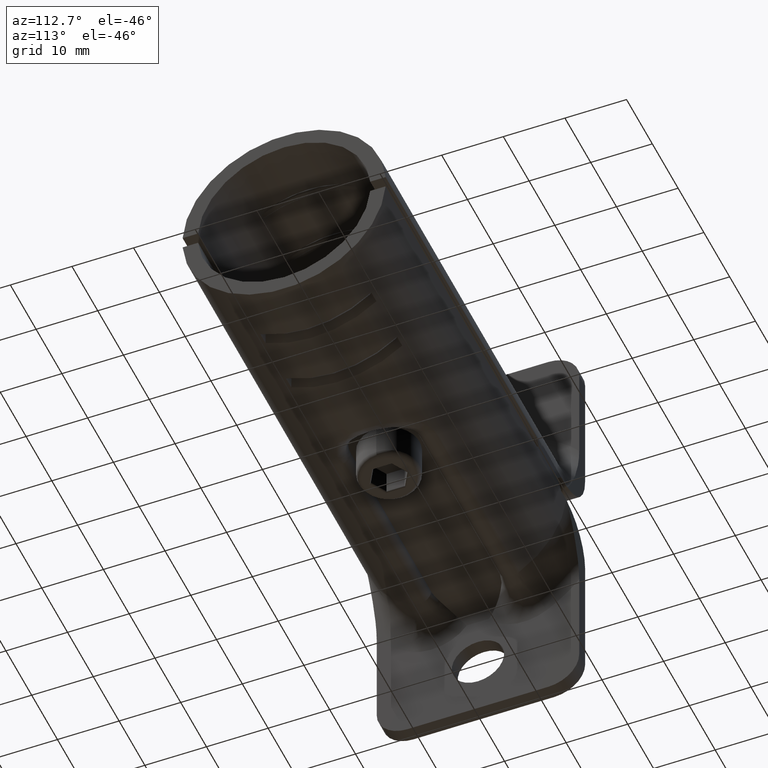
[diagram: clean part render]
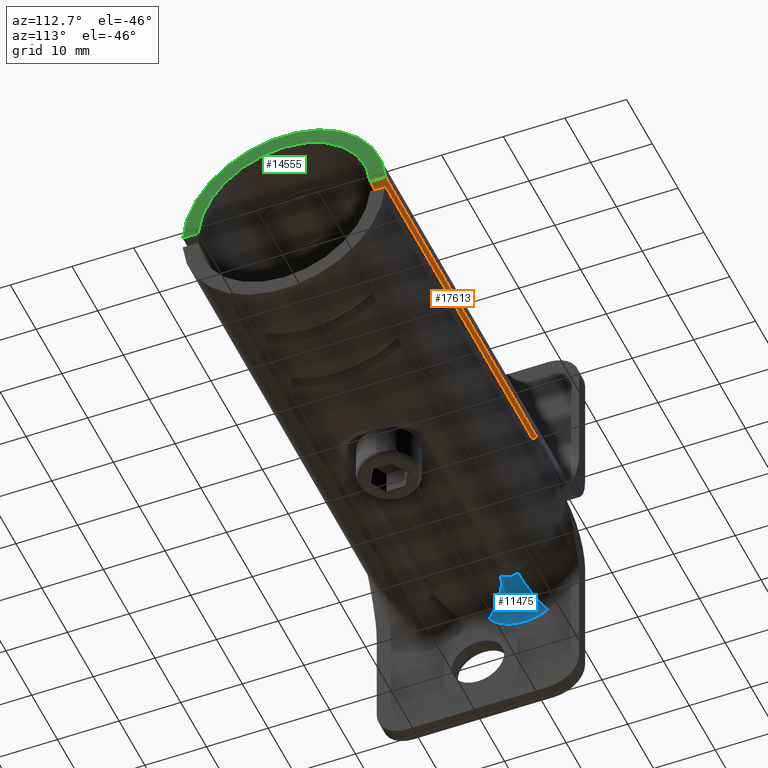
[diagram: same view with three faces highlighted in distinct colors, each labeled with its STEP entity id]
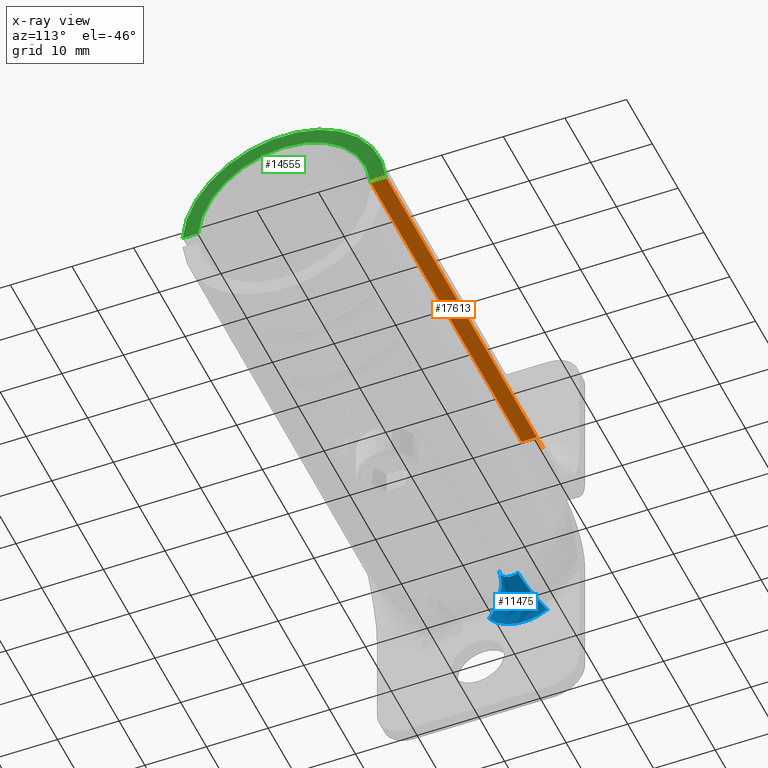
[diagram: x-ray of the same camera — body ghosted, the three highlighted faces saturated]
A machine part, auxiliary view with three faces highlighted in distinct colors.
The next image is the same camera in x-ray (body ghosted, the three faces saturated) — at least one of them is partly hidden behind the body in this view.
Their STEP definitions:

[orange] entity #17613 — the highlighted planar face has unit normal (0, 0, -1).
#48 = CARTESIAN_POINT ( 'NONE',  ( 6.800796950949000497, 13.96424004377000117, 1.000000000000000000 ) ) ;
#235 = DIRECTION ( 'NONE',  ( -1.000000000000000000, 0.000000000000000000, 0.000000000000000000 ) ) ;
#463 = LINE ( 'NONE', #7064, #8794 ) ;
#1045 = LINE ( 'NONE', #16103, #20076 ) ;
#1180 = ORIENTED_EDGE ( 'NONE', *, *, #4799, .F. ) ;
#1816 = LINE ( 'NONE', #15149, #16561 ) ;
#1844 = VECTOR ( 'NONE', #17413, 1000.000000000000000 ) ;
#2804 = EDGE_CURVE ( 'NONE', #5019, #21243, #19867, .T. ) ;
#2867 = EDGE_CURVE ( 'NONE', #3821, #5144, #1816, .T. ) ;
#3014 = CARTESIAN_POINT ( 'NONE',  ( 4.500000000000000000, 16.46966909200000018, 1.000000000000000000 ) ) ;
#3218 = CARTESIAN_POINT ( 'NONE',  ( 65.50000000000000000, 16.46966909200000018, 1.000000000000000000 ) ) ;
#3627 = DIRECTION ( 'NONE',  ( -1.000000000000000000, 0.000000000000000000, 0.000000000000000000 ) ) ;
#3807 = CARTESIAN_POINT ( 'NONE',  ( 65.50000000000000000, 13.96424004377000117, 1.000000000000000000 ) ) ;
#3821 = VERTEX_POINT ( 'NONE', #7699 ) ;
#4201 = ORIENTED_EDGE ( 'NONE', *, *, #5714, .F. ) ;
#4323 = EDGE_CURVE ( 'NONE', #14740, #5019, #463, .T. ) ;
#4799 = EDGE_CURVE ( 'NONE', #3821, #14128, #10742, .T. ) ;
#4905 = CARTESIAN_POINT ( 'NONE',  ( 4.500000000000000000, 16.43167672514999822, 1.000000000000000000 ) ) ;
#5019 = VERTEX_POINT ( 'NONE', #19836 ) ;
#5077 = DIRECTION ( 'NONE',  ( 0.000000000000000000, -1.000000000000000000, 0.000000000000000000 ) ) ;
#5093 = VECTOR ( 'NONE', #12458, 1000.000000000000000 ) ;
#5144 = VERTEX_POINT ( 'NONE', #48 ) ;
#5714 = EDGE_CURVE ( 'NONE', #14128, #21243, #10951, .T. ) ;
#6254 = DIRECTION ( 'NONE',  ( 0.000000000000000000, -1.000000000000000000, 0.000000000000000000 ) ) ;
#6516 = DIRECTION ( 'NONE',  ( 0.000000000000000000, 1.000000000000000000, -2.337781226711000010E-14 ) ) ;
#7064 = CARTESIAN_POINT ( 'NONE',  ( 6.800796950949000497, 16.43167672514999822, 1.000000000000000000 ) ) ;
#7468 = VECTOR ( 'NONE', #6516, 1000.000000000000000 ) ;
#7585 = EDGE_CURVE ( 'NONE', #14740, #5144, #1045, .T. ) ;
#7699 = CARTESIAN_POINT ( 'NONE',  ( 65.50000000000000000, 13.96424004377000117, 1.000000000000000000 ) ) ;
#8794 = VECTOR ( 'NONE', #3627, 1000.000000000000000 ) ;
#9752 = DIRECTION ( 'NONE',  ( 0.000000000000000000, 0.000000000000000000, -1.000000000000000000 ) ) ;
#10742 = LINE ( 'NONE', #3807, #1844 ) ;
#10951 = LINE ( 'NONE', #15973, #5093 ) ;
#12458 = DIRECTION ( 'NONE',  ( -1.000000000000000000, 0.000000000000000000, 0.000000000000000000 ) ) ;
#12577 = ORIENTED_EDGE ( 'NONE', *, *, #2867, .T. ) ;
#13341 = PLANE ( 'NONE',  #19536 ) ;
#13388 = ORIENTED_EDGE ( 'NONE', *, *, #2804, .T. ) ;
#14024 = CARTESIAN_POINT ( 'NONE',  ( 6.800796950949000497, 16.43167672514999822, 1.000000000000000000 ) ) ;
#14128 = VERTEX_POINT ( 'NONE', #3218 ) ;
#14553 = FACE_OUTER_BOUND ( 'NONE', #20372, .T. ) ;
#14740 = VERTEX_POINT ( 'NONE', #14024 ) ;
#15149 = CARTESIAN_POINT ( 'NONE',  ( 65.50000000000000000, 13.96424004377000117, 1.000000000000000000 ) ) ;
#15973 = CARTESIAN_POINT ( 'NONE',  ( 65.50000000000000000, 16.46966909200000018, 1.000000000000000000 ) ) ;
#16103 = CARTESIAN_POINT ( 'NONE',  ( 6.800796950949000497, 16.43167672514999822, 1.000000000000000000 ) ) ;
#16561 = VECTOR ( 'NONE', #235, 1000.000000000000000 ) ;
#17413 = DIRECTION ( 'NONE',  ( 0.000000000000000000, 1.000000000000000000, 0.000000000000000000 ) ) ;
#17613 = ADVANCED_FACE ( 'NONE', ( #14553 ), #13341, .T. ) ;
#19536 = AXIS2_PLACEMENT_3D ( 'NONE', #20051, #9752, #5077 ) ;
#19836 = CARTESIAN_POINT ( 'NONE',  ( 4.500000000000000000, 16.43167672514999822, 1.000000000000000000 ) ) ;
#19867 = LINE ( 'NONE', #4905, #7468 ) ;
#19871 = ORIENTED_EDGE ( 'NONE', *, *, #4323, .T. ) ;
#20051 = CARTESIAN_POINT ( 'NONE',  ( 65.50000000000000000, 13.96424004377000117, 1.000000000000000000 ) ) ;
#20076 = VECTOR ( 'NONE', #6254, 1000.000000000000000 ) ;
#20372 = EDGE_LOOP ( 'NONE', ( #13388, #4201, #1180, #12577, #20747, #19871 ) ) ;
#20747 = ORIENTED_EDGE ( 'NONE', *, *, #7585, .F. ) ;
#21243 = VERTEX_POINT ( 'NONE', #3014 ) ;

[blue] entity #11475 — the highlighted face is a freeform B-spline surface patch.
#3 = CARTESIAN_POINT ( 'NONE',  ( -9.281798803382201868, 3.066395360007149407, -14.71481328484357043 ) ) ;
#219 = CARTESIAN_POINT ( 'NONE',  ( -8.035644806414220298, 4.332376284738724159, -13.25272164190010571 ) ) ;
#280 = CARTESIAN_POINT ( 'NONE',  ( -4.542946598181998752, 8.539464030323003385, -14.13024464838000682 ) ) ;
#325 = CARTESIAN_POINT ( 'NONE',  ( -9.066371282774213114, 3.360758559564558823, -14.33954832447911087 ) ) ;
#387 = CARTESIAN_POINT ( 'NONE',  ( -9.794169770464996816, 9.619562344839994950, -15.91165852311999984 ) ) ;
#433 = CARTESIAN_POINT ( 'NONE',  ( -8.397012807487293173, 4.047229719760503386, -13.54324960589868354 ) ) ;
#485 = CARTESIAN_POINT ( 'NONE',  ( -9.794198765653993277, 4.610157862802002349, -15.33680182081998744 ) ) ;
#590 = CARTESIAN_POINT ( 'NONE',  ( -4.700000000000077449, 7.935231629156128896, -14.38054410035235975 ) ) ;
#593 = FACE_OUTER_BOUND ( 'NONE', #5914, .T. ) ;
#696 = CARTESIAN_POINT ( 'NONE',  ( -7.618433025734001163, 6.447837503009996141, -14.02003380534999977 ) ) ;
#934 = CARTESIAN_POINT ( 'NONE',  ( -9.700000000000001066, 10.21687690056845454, -18.86673847111377000 ) ) ;
#1130 = CARTESIAN_POINT ( 'NONE',  ( -9.697531716020991510, 6.204015579213998599, -19.50270139112998180 ) ) ;
#1357 = CARTESIAN_POINT ( 'NONE',  ( -9.700000000000002842, 3.367930259876878996, -18.07035795059152861 ) ) ;
#1503 = CARTESIAN_POINT ( 'NONE',  ( -9.627862815410070496, 2.323356863247928228, -15.74375850765585128 ) ) ;
#1560 = CARTESIAN_POINT ( 'NONE',  ( -9.700000000000002842, 3.548749491729784822, -18.19815503623140529 ) ) ;
#1705 = CARTESIAN_POINT ( 'NONE',  ( -7.203289673997687714, 4.855826943283894970, -12.79046242283997259 ) ) ;
#1806 = CARTESIAN_POINT ( 'NONE',  ( -8.745556487532709866, 3.721402240502910352, -13.90614000059883182 ) ) ;
#1874 = CARTESIAN_POINT ( 'NONE',  ( -7.618416244714002694, 8.489253978103993958, -14.04743285016999366 ) ) ;
#1919 = CARTESIAN_POINT ( 'NONE',  ( -7.072642304730296203, 4.922494805677656515, -12.74042991334454733 ) ) ;
#1978 = CARTESIAN_POINT ( 'NONE',  ( -9.794213374750999179, 9.154640253075994494, -16.17392726407999959 ) ) ;
#2022 = B_SPLINE_CURVE_WITH_KNOTS ( 'NONE', 3,
 ( #14425, #17505, #2555, #21258, #6247, #934, #19599, #19256, #15977, #4432, #9413, #5160, #4750, #11491, #11591, #18280, #1560, #1357, #19812, #14757, #16528, #20145, #11796 ),
 .UNSPECIFIED., .F., .F.,
 ( 4, 1, 2, 2, 2, 2, 2, 2, 2, 2, 2, 4 ),
 ( 0.000000000000000000, 0.06249999999999877875, 0.09374999999999861222, 0.1249999999999984457, 0.2499999999999986677, 0.3749999999999988898, 0.4999999999999991118, 0.6249999999999993339, 0.7499999999999995559, 0.8124999999999996669, 0.8749999999999997780, 1.000000000000000000 ),
 .UNSPECIFIED. ) ;
#2028 = CARTESIAN_POINT ( 'NONE',  ( -7.783963014685265414, 4.510261296459660230, -13.08326652617640029 ) ) ;
#2094 = CARTESIAN_POINT ( 'NONE',  ( -7.618433599412004931, 7.534843686099995885, -14.33339640328999209 ) ) ;
#2143 = ORIENTED_EDGE ( 'NONE', *, *, #8377, .F. ) ;
#2157 =( BOUNDED_SURFACE ( )  B_SPLINE_SURFACE ( 3, 3, ( 
 ( #8520, #280, #2198, #2306, #20676, #5578, #8837, #3755, #13644, #3963, #16841, #20253, #10369, #12116 ),
 ( #17043, #1874, #20358, #8621, #2094, #3657, #15629, #696, #6882, #8728, #7306, #11910, #13953, #18596 ),
 ( #10266, #387, #1978, #6990, #15407, #18807, #3859, #15519, #485, #7093, #17713, #4075, #7855, #20902 ),
 ( #14402, #13164, #10806, #21517, #6514, #1130, #21128, #12547, #6122, #16182, #17601, #19120, #2649, #9395 ) ),
 .UNSPECIFIED., .F., .F., .T. ) 
 B_SPLINE_SURFACE_WITH_KNOTS ( ( 4, 4 ),
 ( 4, 1, 1, 1, 1, 1, 1, 1, 1, 1, 1, 4 ),
 ( 0.000000000000000000, 1.000000000000000000 ),
 ( 0.003877849984449000236, 0.09026218317414000381, 0.1814525561137999843, 0.2724405185035000398, 0.3633954578663999846, 0.4544136458971999581, 0.5454107882611000102, 0.6364590013615999409, 0.7274686368870999509, 0.8185163959632999475, 0.9097372343197999145, 0.9951218991283999893 ),
 .UNSPECIFIED. ) 
 GEOMETRIC_REPRESENTATION_ITEM ( )  RATIONAL_B_SPLINE_SURFACE ( (
 ( 1.187264090398000072, 1.187264090398000072, 1.187264090398000072, 1.187264090398000072, 1.187264090398000072, 1.187264090398000072, 1.187264090398000072, 1.187264090398000072, 1.187264090398000072, 1.187264090398000072, 1.187264090398000072, 1.187264090398000072, 1.187264090398000072, 1.187264090398000072),
 ( 0.9375786365339000561, 0.9375786365339000561, 0.9375786365339000561, 0.9375786365339000561, 0.9375786365339000561, 0.9375786365339000561, 0.9375786365339000561, 0.9375786365339000561, 0.9375786365339000561, 0.9375786365339000561, 0.9375786365339000561, 0.9375786365339000561, 0.9375786365339000561, 0.9375786365339000561),
 ( 0.9375786365339000561, 0.9375786365339000561, 0.9375786365339000561, 0.9375786365339000561, 0.9375786365339000561, 0.9375786365339000561, 0.9375786365339000561, 0.9375786365339000561, 0.9375786365339000561, 0.9375786365339000561, 0.9375786365339000561, 0.9375786365339000561, 0.9375786365339000561, 0.9375786365339000561),
 ( 1.187264090398000072, 1.187264090398000072, 1.187264090398000072, 1.187264090398000072, 1.187264090398000072, 1.187264090398000072, 1.187264090398000072, 1.187264090398000072, 1.187264090398000072, 1.187264090398000072, 1.187264090398000072, 1.187264090398000072, 1.187264090398000072, 1.187264090398000072) ) ) 
 REPRESENTATION_ITEM ( '' )  SURFACE ( )  );
#2198 = CARTESIAN_POINT ( 'NONE',  ( -4.542945253860999344, 8.310267083754006023, -14.25957845621001496 ) ) ;
#2306 = CARTESIAN_POINT ( 'NONE',  ( -4.542945817617003001, 7.935770744400004517, -14.38296861018998385 ) ) ;
#2555 = CARTESIAN_POINT ( 'NONE',  ( -9.699999999999999289, 10.81117353562882144, -18.58862903598904737 ) ) ;
#2645 = CARTESIAN_POINT ( 'NONE',  ( -4.699999999999799449, 6.395866414916735465, -14.09933296200141406 ) ) ;
#2649 = CARTESIAN_POINT ( 'NONE',  ( -9.697506553185004208, 0.3433829022722000857, -12.89105234279001877 ) ) ;
#3003 = B_SPLINE_CURVE_WITH_KNOTS ( 'NONE', 3,
 ( #13625, #20335, #8495, #11887, #16715, #6755, #7070, #10133, #20446, #8390, #5453, #6861, #12090, #17131 ),
 .UNSPECIFIED., .F., .F.,
 ( 4, 2, 2, 2, 2, 2, 4 ),
 ( 0.000000000000000000, 0.2500000000000001665, 0.3750000000000003886, 0.5000000000000005551, 0.6250000000000007772, 0.7500000000000009992, 1.000000000000000000 ),
 .UNSPECIFIED. ) ;
#3061 = B_SPLINE_CURVE_WITH_KNOTS ( 'NONE', 3,
 ( #6930, #3490, #8463, #20088 ),
 .UNSPECIFIED., .F., .F.,
 ( 4, 4 ),
 ( 0.000000000000000000, 1.000000000000000000 ),
 .UNSPECIFIED. ) ;
#3163 = CARTESIAN_POINT ( 'NONE',  ( -9.630616991641975488, 2.313400248356630051, -15.75819879372764021 ) ) ;
#3379 = CARTESIAN_POINT ( 'NONE',  ( -8.053483446909444510, 4.319228695050499667, -13.26557682015593009 ) ) ;
#3485 = CARTESIAN_POINT ( 'NONE',  ( -8.903744558440909174, 3.554712267359029010, -14.10164942811593214 ) ) ;
#3490 = CARTESIAN_POINT ( 'NONE',  ( -5.370101355884566274, 5.466641228875332992, -12.50000000000000000 ) ) ;
#3589 = CARTESIAN_POINT ( 'NONE',  ( -9.191320285214191088, 3.196421181646649234, -14.54686758384840672 ) ) ;
#3657 = CARTESIAN_POINT ( 'NONE',  ( -7.618432839774005316, 7.154233336160002565, -14.30250894842999543 ) ) ;
#3696 = CARTESIAN_POINT ( 'NONE',  ( -7.361815198159476381, 4.767578803922137176, -12.86153492058875081 ) ) ;
#3755 = CARTESIAN_POINT ( 'NONE',  ( -4.542945695117998284, 6.394504999422997216, -14.10141025351999922 ) ) ;
#3859 = CARTESIAN_POINT ( 'NONE',  ( -9.794199071575000914, 5.973723443957003276, -16.23040574016997439 ) ) ;
#3861 = CARTESIAN_POINT ( 'NONE',  ( -4.700000000000000178, 8.580185966971001221, -14.09724929075000155 ) ) ;
#3963 = CARTESIAN_POINT ( 'NONE',  ( -4.542945667408997856, 5.825456739022998320, -13.53878351271001890 ) ) ;
#4075 = CARTESIAN_POINT ( 'NONE',  ( -9.794211905177997224, 3.469858407184996718, -13.21362819193999094 ) ) ;
#4280 = ORIENTED_EDGE ( 'NONE', *, *, #11338, .F. ) ;
#4296 = CARTESIAN_POINT ( 'NONE',  ( -4.700000000000043698, 7.536645658987506380, -14.42819113276944165 ) ) ;
#4432 = CARTESIAN_POINT ( 'NONE',  ( -9.700000000000001066, 7.960217801047376085, -19.41421378288857724 ) ) ;
#4690 = CARTESIAN_POINT ( 'NONE',  ( -9.648739228072731322, 2.243417894326656725, -15.86007288354360156 ) ) ;
#4750 = CARTESIAN_POINT ( 'NONE',  ( -9.700000000000004619, 5.757556024538891926, -19.20973188487887739 ) ) ;
#5104 = CARTESIAN_POINT ( 'NONE',  ( -6.272681183581153341, 5.257052503382949382, -12.53027476114837313 ) ) ;
#5160 = CARTESIAN_POINT ( 'NONE',  ( -9.700000000000001066, 6.629955619302449144, -19.37521783417113852 ) ) ;
#5203 = CARTESIAN_POINT ( 'NONE',  ( -7.431300095950878593, 4.728070803366362540, -12.89385771397441083 ) ) ;
#5309 = CARTESIAN_POINT ( 'NONE',  ( -7.613920217335012453, 4.618585133361037265, -12.98700245216325122 ) ) ;
#5312 = EDGE_CURVE ( 'NONE', #9595, #9091, #3003, .T. ) ;
#5453 = CARTESIAN_POINT ( 'NONE',  ( -9.227109162012363086, 10.12219170797770396, -16.49619017944274191 ) ) ;
#5578 = CARTESIAN_POINT ( 'NONE',  ( -4.542945705125998046, 7.136744237561002180, -14.39822035531998523 ) ) ;
#5837 = EDGE_CURVE ( 'NONE', #9595, #16827, #10240, .T. ) ;
#5901 = CARTESIAN_POINT ( 'NONE',  ( -4.700000000000254197, 8.285886721115653941, -14.26500953300897301 ) ) ;
#5914 = EDGE_LOOP ( 'NONE', ( #6076, #2143, #4280, #18787, #9826 ) ) ;
#5929 = CARTESIAN_POINT ( 'NONE',  ( -9.699999487522001473, 11.28384784320999934, -18.30322968466000333 ) ) ;
#6076 = ORIENTED_EDGE ( 'NONE', *, *, #8770, .F. ) ;
#6122 = CARTESIAN_POINT ( 'NONE',  ( -9.697531743576005780, 2.433245775826002877, -17.53822228722999199 ) ) ;
#6191 = CARTESIAN_POINT ( 'NONE',  ( -9.638488927281667173, 2.284052874047266091, -15.80083769008507133 ) ) ;
#6247 = CARTESIAN_POINT ( 'NONE',  ( -9.699999999999999289, 10.31600043949544698, -18.82410110193183428 ) ) ;
#6504 = CARTESIAN_POINT ( 'NONE',  ( -9.587609382996921781, 2.457765642307669918, -15.54984137880464523 ) ) ;
#6514 = CARTESIAN_POINT ( 'NONE',  ( -9.697533016826998420, 7.635313160327998006, -19.61870158233001504 ) ) ;
#6716 = CARTESIAN_POINT ( 'NONE',  ( -6.569196241656323210, 5.143016113673136047, -12.59556885781216096 ) ) ;
#6755 = CARTESIAN_POINT ( 'NONE',  ( -7.721895739477815823, 9.121860595264102756, -14.94010557674381801 ) ) ;
#6821 = CARTESIAN_POINT ( 'NONE',  ( -7.557446917138671338, 4.653354329496190545, -12.95685985807977403 ) ) ;
#6861 = CARTESIAN_POINT ( 'NONE',  ( -9.592606425002060178, 10.62143181997744534, -17.27279078402958845 ) ) ;
#6882 = CARTESIAN_POINT ( 'NONE',  ( -7.618432855865998832, 6.150231257511994620, -13.77938978237000001 ) ) ;
#6924 = CARTESIAN_POINT ( 'NONE',  ( -5.983570445661805515, 5.341309576150226945, -12.50000000000000000 ) ) ;
#6930 = CARTESIAN_POINT ( 'NONE',  ( -5.700000000000000178, 5.399242980147999305, -12.50000000000000000 ) ) ;
#6990 = CARTESIAN_POINT ( 'NONE',  ( -9.794195088807002847, 8.390084105887000376, -16.42610730219998416 ) ) ;
#7029 = CARTESIAN_POINT ( 'NONE',  ( -5.700000000000000178, 5.399242980147999305, -12.50000000000000000 ) ) ;
#7070 = CARTESIAN_POINT ( 'NONE',  ( -7.991456044898798794, 9.240007118119276441, -15.12389132349037624 ) ) ;
#7093 = CARTESIAN_POINT ( 'NONE',  ( -9.794199960928999360, 4.087826919264997194, -14.70548157482999940 ) ) ;
#7134 = CARTESIAN_POINT ( 'NONE',  ( -9.162419166848591701, 3.235993738656262941, -14.49639542847765661 ) ) ;
#7199 = CARTESIAN_POINT ( 'NONE',  ( -4.700000000000389200, 6.083565167042920940, -13.84680642122376604 ) ) ;
#7303 = CARTESIAN_POINT ( 'NONE',  ( -4.700000000000404299, 7.137190680690478573, -14.39577713620386845 ) ) ;
#7306 = CARTESIAN_POINT ( 'NONE',  ( -7.618430968982999651, 5.725255388970996506, -13.14634811087999644 ) ) ;
#7605 = VERTEX_POINT ( 'NONE', #12914 ) ;
#7620 = CARTESIAN_POINT ( 'NONE',  ( -4.700000000000528644, 5.637618321303437874, -13.18253434504948096 ) ) ;
#7855 = CARTESIAN_POINT ( 'NONE',  ( -9.794173088005996064, 3.418018416461997333, -12.68545912670999876 ) ) ;
#8377 = EDGE_CURVE ( 'NONE', #7605, #17394, #11390, .T. ) ;
#8390 = CARTESIAN_POINT ( 'NONE',  ( -9.071858350041290819, 9.958891383499024030, -16.24216571865109771 ) ) ;
#8457 = CARTESIAN_POINT ( 'NONE',  ( -8.623750942580668877, 3.840889525469025401, -13.77015991249561111 ) ) ;
#8463 = CARTESIAN_POINT ( 'NONE',  ( -5.036768022551233237, 5.500340353239000279, -12.50000000000000000 ) ) ;
#8495 = CARTESIAN_POINT ( 'NONE',  ( -5.924988577267217060, 8.638154633101160940, -14.18765892516026383 ) ) ;
#8520 = CARTESIAN_POINT ( 'NONE',  ( -4.542945836964999096, 8.642510683859997656, -14.05851071665998120 ) ) ;
#8562 = CARTESIAN_POINT ( 'NONE',  ( -6.878652241858118188, 5.013347779252612213, -12.67698974287731239 ) ) ;
#8621 = CARTESIAN_POINT ( 'NONE',  ( -7.618430749423997561, 7.914651280276000733, -14.28799012624999776 ) ) ;
#8667 = CARTESIAN_POINT ( 'NONE',  ( -8.686820597058298787, 3.779847477952523072, -13.83921370177914945 ) ) ;
#8728 = CARTESIAN_POINT ( 'NONE',  ( -7.618433540631005307, 5.906233167254998584, -13.48454773636000148 ) ) ;
#8770 = EDGE_CURVE ( 'NONE', #17394, #16827, #3061, .T. ) ;
#8771 = CARTESIAN_POINT ( 'NONE',  ( -7.898171017892764212, 4.432690407197528160, -13.15523274875062754 ) ) ;
#8837 = CARTESIAN_POINT ( 'NONE',  ( -4.542945694828003589, 6.750878533978999840, -14.28704607763998702 ) ) ;
#9091 = VERTEX_POINT ( 'NONE', #5929 ) ;
#9279 = CARTESIAN_POINT ( 'NONE',  ( -4.699999999999775468, 5.827518713869994649, -13.53739903942878264 ) ) ;
#9391 = CARTESIAN_POINT ( 'NONE',  ( -4.700000000000000178, 5.500340353239000279, -12.49999990807999950 ) ) ;
#9395 = CARTESIAN_POINT ( 'NONE',  ( -9.697526521338991401, 0.3414636969384000631, -12.44437275882000016 ) ) ;
#9413 = CARTESIAN_POINT ( 'NONE',  ( -9.700000000000004619, 7.070770853139284995, -19.41616787315483705 ) ) ;
#9595 = VERTEX_POINT ( 'NONE', #3861 ) ;
#9826 = ORIENTED_EDGE ( 'NONE', *, *, #5837, .T. ) ;
#9886 = CARTESIAN_POINT ( 'NONE',  ( -9.442875683509694085, 2.789375520684449050, -15.08643442565414361 ) ) ;
#9987 = CARTESIAN_POINT ( 'NONE',  ( -9.063074445448084049, 3.364882563355239942, -14.33441689508726213 ) ) ;
#10088 = CARTESIAN_POINT ( 'NONE',  ( -8.785045295861944936, 3.680890747925325890, -13.95313689260117407 ) ) ;
#10133 = CARTESIAN_POINT ( 'NONE',  ( -8.479611486858139813, 9.503978975601201640, -15.53451847370386929 ) ) ;
#10199 = CARTESIAN_POINT ( 'NONE',  ( -8.095231321069343622, 4.288125332631408604, -13.29618801488487989 ) ) ;
#10240 =( BOUNDED_CURVE ( )  B_SPLINE_CURVE ( 3, ( #14168, #15514, #5901, #590, #4296, #7303, #10924, #2645, #7199, #9279, #7620, #14285, #21231, #9391 ),
 .UNSPECIFIED., .F., .F. ) 
 B_SPLINE_CURVE_WITH_KNOTS ( ( 4, 1, 1, 1, 1, 1, 1, 1, 1, 1, 1, 4 ),
 ( 0.000000000000000000, 0.07274792047830805353, 0.1680651267422762496, 0.2631707623379974104, 0.3582418804451341088, 0.4533791095476511490, 0.5484943405586132359, 0.6436629535196387586, 0.7387912430720096069, 0.8339593814618008194, 0.9293084318593901605, 1.000000000000000000 ),
 .UNSPECIFIED. ) 
 CURVE ( )  GEOMETRIC_REPRESENTATION_ITEM ( )  RATIONAL_B_SPLINE_CURVE ( ( 1.171574108519800816, 1.171574108519800816, 1.171574108519800816, 1.171574108519800816, 1.171574108519800816, 1.171574108519800816, 1.171574108519800816, 1.171574108519800816, 1.171574108519800816, 1.171574108519800816, 1.171574108519800816, 1.171574108519800816, 1.171574108519800816, 1.171574108519800816 ) ) 
 REPRESENTATION_ITEM ( '' )  );
#10266 = CARTESIAN_POINT ( 'NONE',  ( -9.794194461246000571, 9.830615568445997710, -15.76472437361999823 ) ) ;
#10309 = CARTESIAN_POINT ( 'NONE',  ( -8.599724059788435682, 3.863621144250910078, -13.74470525653292441 ) ) ;
#10369 = CARTESIAN_POINT ( 'NONE',  ( -4.542946495902000059, 5.496568593087999943, -12.54647165531000219 ) ) ;
#10415 = CARTESIAN_POINT ( 'NONE',  ( -6.782147364069288642, 5.056487061036166963, -12.64816922925748344 ) ) ;
#10806 = CARTESIAN_POINT ( 'NONE',  ( -9.697546075452004644, 10.40365495708999788, -19.00567263034001186 ) ) ;
#10924 = CARTESIAN_POINT ( 'NONE',  ( -4.699999999999961986, 6.751800752411013740, -14.28473997153093933 ) ) ;
#11227 = CARTESIAN_POINT ( 'NONE',  ( -9.628992463796135937, 2.319298691487007069, -15.74964196276386019 ) ) ;
#11338 = EDGE_CURVE ( 'NONE', #9091, #7605, #2022, .T. ) ;
#11390 = B_SPLINE_CURVE_WITH_KNOTS ( 'NONE', 3,
 ( #14911, #14584, #14479, #11426, #17895, #21197, #4690, #6191, #18110, #3163, #11227, #1503, #21506, #6504, #19853, #13153, #18217, #9886, #16572, #3, #3589, #7134, #13369, #16779, #11739, #18422, #325, #18643, #9987, #16675, #3485, #10088, #1806, #8667, #15343, #8457, #20192, #10309, #13789, #20507, #433, #13476, #13581, #20294, #10199, #3379, #219, #15136, #18529, #8771, #2028, #5309, #6821, #11842, #5203, #16884, #3696, #20405, #15455, #1705, #1919, #8562, #10415, #16987, #20081, #15234, #11949, #6716, #5104, #6924, #7029 ),
 .UNSPECIFIED., .F., .F.,
 ( 4, 2, 2, 1, 1, 1, 2, 2, 2, 2, 2, 2, 2, 1, 1, 1, 2, 2, 2, 2, 1, 1, 2, 2, 2, 2, 1, 1, 2, 2, 2, 2, 1, 1, 2, 2, 2, 1, 1, 1, 2, 2, 4 ),
 ( 0.000000000000000000, 0.06249999999995167754, 0.09374999999992809918, 0.1093749999999157618, 0.1171874999999100858, 0.1210937499999078376, 0.1230468749999066996, 0.1249999999999055755, 0.1874999999999056033, 0.2187499999999056588, 0.2499999999999057421, 0.3124999999999060196, 0.3437499999999062972, 0.3593749999999062417, 0.3671874999999061862, 0.3710937499999056866, 0.3730468749999058531, 0.3749999999999060196, 0.4374999999999072964, 0.4687499999999081846, 0.4843749999999084066, 0.4921874999999087397, 0.4960937499999091282, 0.4999999999999095168, 0.5624999999999146238, 0.5937499999999175104, 0.6093749999999188427, 0.6171874999999199529, 0.6210937499999210631, 0.6249999999999220623, 0.6874999999999332756, 0.7187499999999390488, 0.7343749999999418243, 0.7421874999999430456, 0.7460937499999437117, 0.7499999999999443778, 0.8124999999999571454, 0.8437499999999636957, 0.8593749999999670264, 0.8671874999999689138, 0.8710937499999696909, 0.8749999999999703570, 1.000000000000000000 ),
 .UNSPECIFIED. ) ;
#11426 = CARTESIAN_POINT ( 'NONE',  ( -9.677768295379301833, 2.098094731296165083, -16.07407965612732070 ) ) ;
#11475 = ADVANCED_FACE ( 'NONE', ( #593 ), #2157, .F. ) ;
#11491 = CARTESIAN_POINT ( 'NONE',  ( -9.700000000000001066, 5.331693138335620752, -19.08599649188700553 ) ) ;
#11591 = CARTESIAN_POINT ( 'NONE',  ( -9.700000000000004619, 4.504711579184720094, -18.75815450259300476 ) ) ;
#11739 = CARTESIAN_POINT ( 'NONE',  ( -9.081017941636865487, 3.342342373688720780, -14.36249382880007097 ) ) ;
#11796 = CARTESIAN_POINT ( 'NONE',  ( -9.699991816385997723, 1.814579686534000036, -16.49999999911999993 ) ) ;
#11842 = CARTESIAN_POINT ( 'NONE',  ( -7.473261798775373776, 4.703499999450964530, -12.91439958001138777 ) ) ;
#11887 = CARTESIAN_POINT ( 'NONE',  ( -6.848215670072774763, 8.835796450853582229, -14.49510960580614238 ) ) ;
#11910 = CARTESIAN_POINT ( 'NONE',  ( -7.618440383412997008, 5.617451635153003053, -12.78778841891000440 ) ) ;
#11949 = CARTESIAN_POINT ( 'NONE',  ( -6.575941008839743418, 5.140401658998738021, -12.59707896638125924 ) ) ;
#12090 = CARTESIAN_POINT ( 'NONE',  ( -9.700000098897479717, 10.96520826490852407, -17.80755695677951422 ) ) ;
#12116 = CARTESIAN_POINT ( 'NONE',  ( -4.542945868375995566, 5.496026403037997277, -12.42265421682999182 ) ) ;
#12373 = CARTESIAN_POINT ( 'NONE',  ( -5.700000000000000178, 5.399242980147999305, -12.50000000000000000 ) ) ;
#12547 = CARTESIAN_POINT ( 'NONE',  ( -9.697532034458991035, 3.550175759960998878, -18.44137922855999179 ) ) ;
#12914 = CARTESIAN_POINT ( 'NONE',  ( -9.699991816385997723, 1.814579686534000036, -16.49999999911999993 ) ) ;
#12920 = CARTESIAN_POINT ( 'NONE',  ( -4.700000000000000178, 5.500340353239000279, -12.49999990807999950 ) ) ;
#13153 = CARTESIAN_POINT ( 'NONE',  ( -9.516273648816515163, 2.635430267246072322, -15.29936939521588712 ) ) ;
#13164 = CARTESIAN_POINT ( 'NONE',  ( -9.697503298597005994, 11.21726668413000283, -18.54676371629999565 ) ) ;
#13369 = CARTESIAN_POINT ( 'NONE',  ( -9.121924900943943371, 3.289698498865352594, -14.42849706401457865 ) ) ;
#13476 = CARTESIAN_POINT ( 'NONE',  ( -8.251704719971694857, 4.166517798695294594, -13.41895054141184751 ) ) ;
#13581 = CARTESIAN_POINT ( 'NONE',  ( -8.203350034175205252, 4.204983263036411678, -13.37959133771033926 ) ) ;
#13625 = CARTESIAN_POINT ( 'NONE',  ( -4.700000000000000178, 8.580185966971001221, -14.09724929075000155 ) ) ;
#13644 = CARTESIAN_POINT ( 'NONE',  ( -4.542945704259999218, 6.081818806675998168, -13.84857244268001786 ) ) ;
#13789 = CARTESIAN_POINT ( 'NONE',  ( -8.596143410786782013, 3.866993253260823771, -13.74093701754724428 ) ) ;
#13953 = CARTESIAN_POINT ( 'NONE',  ( -7.618418145310998035, 5.593193235035001543, -12.54001060625000008 ) ) ;
#14168 = CARTESIAN_POINT ( 'NONE',  ( -4.700000000000000178, 8.580185966971001221, -14.09724929075000155 ) ) ;
#14285 = CARTESIAN_POINT ( 'NONE',  ( -4.700000000000338574, 5.531991563085216335, -12.83118322656187082 ) ) ;
#14402 = CARTESIAN_POINT ( 'NONE',  ( -9.697527520848003846, 11.58808551736000148, -18.28859180941999796 ) ) ;
#14425 = CARTESIAN_POINT ( 'NONE',  ( -9.699999487522001473, 11.28384784320999934, -18.30322968466000333 ) ) ;
#14479 = CARTESIAN_POINT ( 'NONE',  ( -9.695070149627245115, 1.970436865049291164, -16.26418332596075089 ) ) ;
#14584 = CARTESIAN_POINT ( 'NONE',  ( -9.699999999974751930, 1.890116057489334089, -16.38522578742483660 ) ) ;
#14757 = CARTESIAN_POINT ( 'NONE',  ( -9.700000000000004619, 2.849468631096129911, -17.65226320691476758 ) ) ;
#14911 = CARTESIAN_POINT ( 'NONE',  ( -9.699991816385997723, 1.814579686534000036, -16.49999999911999993 ) ) ;
#15136 = CARTESIAN_POINT ( 'NONE',  ( -8.023764829088255723, 4.341100806135964163, -13.24420970948586707 ) ) ;
#15234 = CARTESIAN_POINT ( 'NONE',  ( -6.591696677640055846, 5.134260080994944353, -12.60064847946271982 ) ) ;
#15343 = CARTESIAN_POINT ( 'NONE',  ( -8.657576324554591807, 3.808489596323140436, -13.80664257214562696 ) ) ;
#15407 = CARTESIAN_POINT ( 'NONE',  ( -9.794200063533002876, 7.576471603400999122, -16.52327794284998319 ) ) ;
#15455 = CARTESIAN_POINT ( 'NONE',  ( -7.342307943426455985, 4.778511925312741937, -12.85268524966351755 ) ) ;
#15514 = CARTESIAN_POINT ( 'NONE',  ( -4.699999999999980638, 8.494738972801414434, -14.15212651466207383 ) ) ;
#15519 = CARTESIAN_POINT ( 'NONE',  ( -9.794199062163993830, 5.247237775265998216, -15.85194745920998471 ) ) ;
#15629 = CARTESIAN_POINT ( 'NONE',  ( -7.618433031125996457, 6.787005798623996000, -14.19670597727998818 ) ) ;
#15977 = CARTESIAN_POINT ( 'NONE',  ( -9.700000000000004619, 8.401932541050168624, -19.37115531482120900 ) ) ;
#16182 = CARTESIAN_POINT ( 'NONE',  ( -9.697532916169999240, 1.517488029004001593, -16.43128609783999039 ) ) ;
#16528 = CARTESIAN_POINT ( 'NONE',  ( -9.700000000000001066, 2.366376043124488238, -17.19586609964547108 ) ) ;
#16572 = CARTESIAN_POINT ( 'NONE',  ( -9.347311438949942541, 2.964633944766601026, -14.84885999138757562 ) ) ;
#16675 = CARTESIAN_POINT ( 'NONE',  ( -8.983217148617669068, 3.464401276536787311, -14.21070471492032006 ) ) ;
#16715 = CARTESIAN_POINT ( 'NONE',  ( -7.150201334176638390, 8.919748348239254554, -14.62570396355883773 ) ) ;
#16779 = CARTESIAN_POINT ( 'NONE',  ( -9.102388710466762234, 3.315137360143559864, -14.39650054266692614 ) ) ;
#16827 = VERTEX_POINT ( 'NONE', #12920 ) ;
#16841 = CARTESIAN_POINT ( 'NONE',  ( -4.542945805801998027, 5.635322612937001985, -13.18348226632001463 ) ) ;
#16884 = CARTESIAN_POINT ( 'NONE',  ( -7.382616797584180546, 4.755858186909176943, -12.87105949716489484 ) ) ;
#16987 = CARTESIAN_POINT ( 'NONE',  ( -6.670733170867526596, 5.102813614360117711, -12.61933779652384935 ) ) ;
#17043 = CARTESIAN_POINT ( 'NONE',  ( -7.618430389898995791, 8.587279778030000088, -13.97919471767998623 ) ) ;
#17131 = CARTESIAN_POINT ( 'NONE',  ( -9.699999487522001473, 11.28384784320999934, -18.30322968466000333 ) ) ;
#17394 = VERTEX_POINT ( 'NONE', #12373 ) ;
#17505 = CARTESIAN_POINT ( 'NONE',  ( -9.700000000000002842, 11.09734941029778277, -18.42309540066433726 ) ) ;
#17601 = CARTESIAN_POINT ( 'NONE',  ( -9.697528512472993967, 0.8390275347976000608, -15.16392115446998723 ) ) ;
#17713 = CARTESIAN_POINT ( 'NONE',  ( -9.794195472051995921, 3.700725146444001190, -13.98229718347998762 ) ) ;
#17895 = CARTESIAN_POINT ( 'NONE',  ( -9.670347916741169669, 2.141843462529612996, -16.00929322906877772 ) ) ;
#18110 = CARTESIAN_POINT ( 'NONE',  ( -9.633029411335586545, 2.304566600565175705, -15.77102005152747033 ) ) ;
#18217 = CARTESIAN_POINT ( 'NONE',  ( -9.469333879217442629, 2.736407615833180262, -15.15926120411947764 ) ) ;
#18280 = CARTESIAN_POINT ( 'NONE',  ( -9.700000000000002842, 4.109971945562931772, -18.55624396306230395 ) ) ;
#18422 = CARTESIAN_POINT ( 'NONE',  ( -9.070707589059692211, 3.355326465974788341, -14.34630988890046766 ) ) ;
#18529 = CARTESIAN_POINT ( 'NONE',  ( -8.019012126738910951, 4.344581651987295956, -13.24081933145561862 ) ) ;
#18596 = CARTESIAN_POINT ( 'NONE',  ( -7.618429806210995636, 5.592676864665002689, -12.42224698400999117 ) ) ;
#18643 = CARTESIAN_POINT ( 'NONE',  ( -9.063498948076768258, 3.364350506982191735, -14.33507924347463458 ) ) ;
#18787 = ORIENTED_EDGE ( 'NONE', *, *, #5312, .F. ) ;
#18807 = CARTESIAN_POINT ( 'NONE',  ( -9.794198737565992019, 6.760525829400997111, -16.45712538905002020 ) ) ;
#19120 = CARTESIAN_POINT ( 'NONE',  ( -9.697544633766002065, 0.4342097998344996990, -13.81555778321999917 ) ) ;
#19256 = CARTESIAN_POINT ( 'NONE',  ( -9.700000000000001066, 9.272037555763832373, -19.20089158608880808 ) ) ;
#19599 = CARTESIAN_POINT ( 'NONE',  ( -9.700000000000004619, 9.699649614384490803, -19.07456847170344005 ) ) ;
#19812 = CARTESIAN_POINT ( 'NONE',  ( -9.700000000000001066, 3.018801635020683438, -17.79789555925262334 ) ) ;
#19853 = CARTESIAN_POINT ( 'NONE',  ( -9.536216174138690604, 2.588411603271920214, -15.36530951562724034 ) ) ;
#20081 = CARTESIAN_POINT ( 'NONE',  ( -6.615355575976169966, 5.124976238832878117, -12.60608376392241325 ) ) ;
#20088 = CARTESIAN_POINT ( 'NONE',  ( -4.700000000000000178, 5.500340353239000279, -12.49999990807999950 ) ) ;
#20145 = CARTESIAN_POINT ( 'NONE',  ( -9.700000000000002842, 2.075090015822850464, -16.86248915341047194 ) ) ;
#20192 = CARTESIAN_POINT ( 'NONE',  ( -8.609324895285027424, 3.854557521755863636, -13.75484474028007043 ) ) ;
#20253 = CARTESIAN_POINT ( 'NONE',  ( -4.542945299168003714, 5.522052210275999684, -12.80670488265001694 ) ) ;
#20294 = CARTESIAN_POINT ( 'NONE',  ( -8.131206435198514271, 4.260735616592362440, -13.32349828069090414 ) ) ;
#20335 = CARTESIAN_POINT ( 'NONE',  ( -5.289255524704191025, 8.580083255768141015, -14.09732003628633379 ) ) ;
#20358 = CARTESIAN_POINT ( 'NONE',  ( -7.618441225321001653, 8.271015082011002661, -14.17058697060000050 ) ) ;
#20405 = CARTESIAN_POINT ( 'NONE',  ( -7.347961872982289755, 4.775350712675612286, -12.85523943829972993 ) ) ;
#20446 = CARTESIAN_POINT ( 'NONE',  ( -8.698096727419596164, 9.649744883350294344, -15.76126743532700658 ) ) ;
#20507 = CARTESIAN_POINT ( 'NONE',  ( -8.494228933630145306, 3.962515419255387972, -13.63442238029227305 ) ) ;
#20676 = CARTESIAN_POINT ( 'NONE',  ( -4.542945664246003545, 7.536692862806003923, -14.43067434061000753 ) ) ;
#20902 = CARTESIAN_POINT ( 'NONE',  ( -9.794193442404001360, 3.416920803895999725, -12.43141444438999166 ) ) ;
#21128 = CARTESIAN_POINT ( 'NONE',  ( -9.697532043692000059, 4.824139148767998542, -19.10506457805999503 ) ) ;
#21197 = CARTESIAN_POINT ( 'NONE',  ( -9.656410077343972276, 2.209260723106518665, -15.91014134858995810 ) ) ;
#21231 = CARTESIAN_POINT ( 'NONE',  ( -4.699999999999896261, 5.504649607444548565, -12.59844672869804150 ) ) ;
#21258 = CARTESIAN_POINT ( 'NONE',  ( -9.700000000000001066, 10.51535532300892584, -18.73276526329107838 ) ) ;
#21506 = CARTESIAN_POINT ( 'NONE',  ( -9.610725721166140545, 2.384548376275779979, -15.65507659991719258 ) ) ;
#21517 = CARTESIAN_POINT ( 'NONE',  ( -9.697528136500011442, 9.062114067688998631, -19.44836139714998424 ) ) ;

[green] entity #14555 — the highlighted planar face has unit normal (-1, 0, 0).
#354 = DIRECTION ( 'NONE',  ( 0.000000000000000000, 0.000000000000000000, 1.000000000000000000 ) ) ;
#729 = VERTEX_POINT ( 'NONE', #19929 ) ;
#939 = EDGE_LOOP ( 'NONE', ( #3685, #13604, #2539, #13734 ) ) ;
#1642 = CARTESIAN_POINT ( 'NONE',  ( 65.50000000000000000, 0.000000000000000000, 0.000000000000000000 ) ) ;
#1844 = VECTOR ( 'NONE', #17413, 1000.000000000000000 ) ;
#2539 = ORIENTED_EDGE ( 'NONE', *, *, #4799, .T. ) ;
#3199 = DIRECTION ( 'NONE',  ( 1.000000000000000000, 0.000000000000000000, 0.000000000000000000 ) ) ;
#3218 = CARTESIAN_POINT ( 'NONE',  ( 65.50000000000000000, 16.46966909200000018, 1.000000000000000000 ) ) ;
#3685 = ORIENTED_EDGE ( 'NONE', *, *, #12282, .T. ) ;
#3807 = CARTESIAN_POINT ( 'NONE',  ( 65.50000000000000000, 13.96424004377000117, 1.000000000000000000 ) ) ;
#3821 = VERTEX_POINT ( 'NONE', #7699 ) ;
#4150 = EDGE_CURVE ( 'NONE', #14128, #13505, #19856, .T. ) ;
#4198 = CIRCLE ( 'NONE', #8662, 13.99999999999999467 ) ;
#4799 = EDGE_CURVE ( 'NONE', #3821, #14128, #10742, .T. ) ;
#5480 = CARTESIAN_POINT ( 'NONE',  ( 65.50000000000000000, -16.46966909200000018, 1.000000000000000000 ) ) ;
#7566 = CARTESIAN_POINT ( 'NONE',  ( 65.50000000000000000, 0.000000000000000000, 0.000000000000000000 ) ) ;
#7699 = CARTESIAN_POINT ( 'NONE',  ( 65.50000000000000000, 13.96424004377000117, 1.000000000000000000 ) ) ;
#8102 = AXIS2_PLACEMENT_3D ( 'NONE', #17115, #20431, #354 ) ;
#8662 = AXIS2_PLACEMENT_3D ( 'NONE', #7566, #21388, #9661 ) ;
#9661 = DIRECTION ( 'NONE',  ( 0.000000000000000000, -0.9974457174120674452, 0.07142857142856773311 ) ) ;
#10742 = LINE ( 'NONE', #3807, #1844 ) ;
#11765 = PLANE ( 'NONE',  #8102 ) ;
#11835 = EDGE_CURVE ( 'NONE', #729, #3821, #4198, .T. ) ;
#12126 = DIRECTION ( 'NONE',  ( 0.000000000000000000, 1.000000000000000000, 0.000000000000000000 ) ) ;
#12154 = AXIS2_PLACEMENT_3D ( 'NONE', #1642, #3199, #13190 ) ;
#12282 = EDGE_CURVE ( 'NONE', #13505, #729, #20474, .T. ) ;
#12807 = CARTESIAN_POINT ( 'NONE',  ( 65.50000000000000000, -16.46966909200000018, 1.000000000000000000 ) ) ;
#12975 = FACE_OUTER_BOUND ( 'NONE', #939, .T. ) ;
#13190 = DIRECTION ( 'NONE',  ( 0.000000000000000000, 0.9981617631515520284, 0.06060606060605710360 ) ) ;
#13505 = VERTEX_POINT ( 'NONE', #12807 ) ;
#13604 = ORIENTED_EDGE ( 'NONE', *, *, #11835, .T. ) ;
#13734 = ORIENTED_EDGE ( 'NONE', *, *, #4150, .T. ) ;
#14128 = VERTEX_POINT ( 'NONE', #3218 ) ;
#14555 = ADVANCED_FACE ( 'NONE', ( #12975 ), #11765, .F. ) ;
#15681 = VECTOR ( 'NONE', #12126, 1000.000000000000000 ) ;
#17115 = CARTESIAN_POINT ( 'NONE',  ( 65.50000000000000000, 0.000000000000000000, 0.000000000000000000 ) ) ;
#17413 = DIRECTION ( 'NONE',  ( 0.000000000000000000, 1.000000000000000000, 0.000000000000000000 ) ) ;
#19856 = CIRCLE ( 'NONE', #12154, 16.50000000000000000 ) ;
#19929 = CARTESIAN_POINT ( 'NONE',  ( 65.50000000000000000, -13.96424004377000117, 1.000000000000000000 ) ) ;
#20431 = DIRECTION ( 'NONE',  ( -1.000000000000000000, 0.000000000000000000, 0.000000000000000000 ) ) ;
#20474 = LINE ( 'NONE', #5480, #15681 ) ;
#21388 = DIRECTION ( 'NONE',  ( -1.000000000000000000, 0.000000000000000000, 0.000000000000000000 ) ) ;